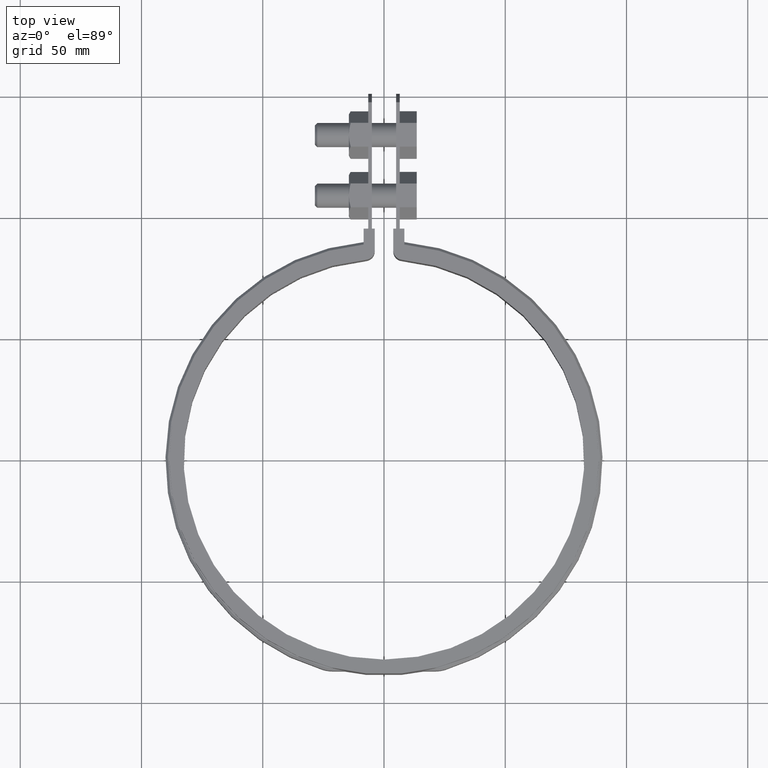
[diagram: clean part render]
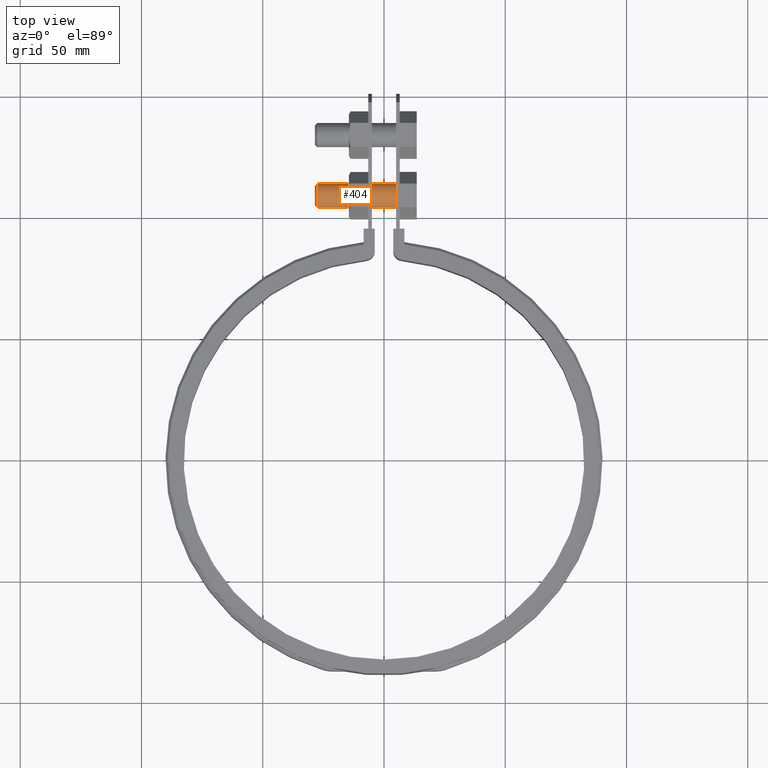
[diagram: same view with one face highlighted and labeled with its STEP entity id]
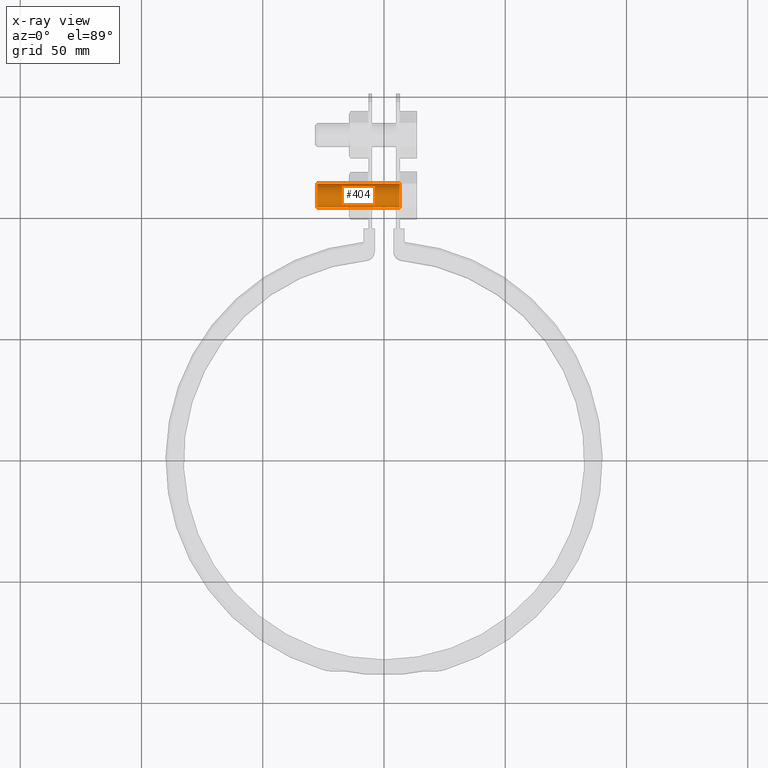
[diagram: x-ray of the same camera — body ghosted, the highlighted face saturated]
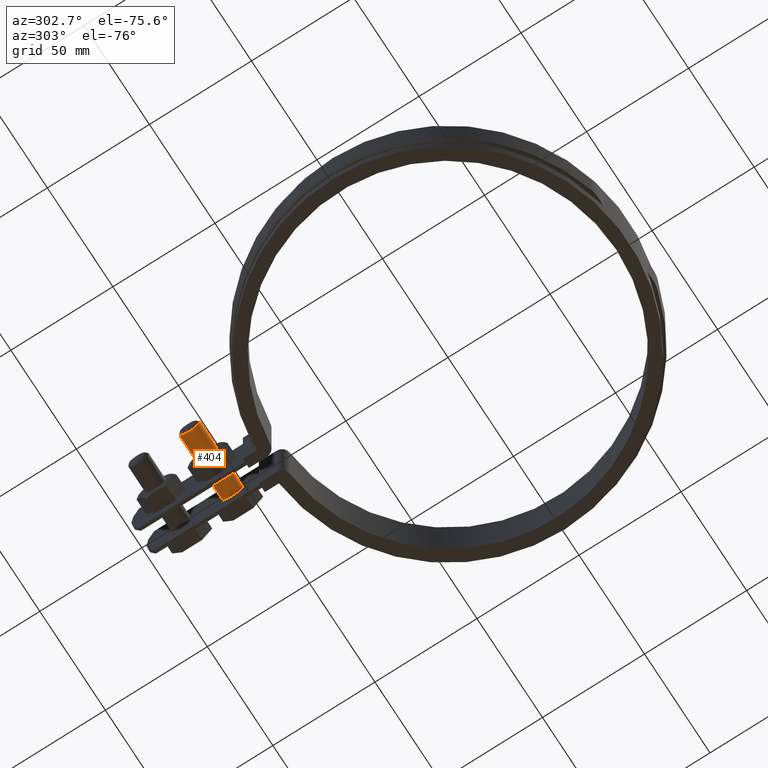
[diagram: same view with one face highlighted and labeled with its STEP entity id]
A machine part, top view. The second image highlights one B-rep face of the part: STEP entity #404.
The next image is the same camera in x-ray: the body ghosted, the highlighted face saturated — about 0% of this face is hidden behind the body in this view.
A second angle (auxiliary view) of the same face is appended — the face is thin or edge-on in the first view.
In plain terms, the highlighted cylindrical surface (bore or boss wall) has radius 5 mm, axis along (1, -0, -0).
Its self-contained STEP definition (entity closure, byte-faithful):
#404 = ADVANCED_FACE( '', ( #662, #663 ), #664, .T. );
#662 = FACE_OUTER_BOUND( '', #1740, .T. );
#663 = FACE_OUTER_BOUND( '', #1741, .T. );
#664 = CYLINDRICAL_SURFACE( '', #1742, 4.99999999999992 );
#1740 = EDGE_LOOP( '', ( #4169 ) );
#1741 = EDGE_LOOP( '', ( #4170 ) );
#1742 = AXIS2_PLACEMENT_3D( '', #4171, #4172, #4173 );
#4169 = ORIENTED_EDGE( '', *, *, #4882, .F. );
#4170 = ORIENTED_EDGE( '', *, *, #4895, .T. );
#4171 = CARTESIAN_POINT( '', ( -28.4999999999988, 109.002986998692, -16.0000000000000 ) );
#4172 = DIRECTION( '', ( 1.00000000000000, -6.22721247786546E-017, -3.08148791101963E-033 ) );
#4173 = DIRECTION( '', ( -3.08148791101963E-033, 0.000000000000000, -1.00000000000000 ) );
#4882 = EDGE_CURVE( '', #5478, #5478, #5479, .T. );
#4895 = EDGE_CURVE( '', #5499, #5499, #5500, .T. );
#5478 = VERTEX_POINT( '', #8286 );
#5479 = CIRCLE( '', #8287, 4.99999999999992 );
#5499 = VERTEX_POINT( '', #8318 );
#5500 = CIRCLE( '', #8319, 4.99999999999992 );
#8286 = CARTESIAN_POINT( '', ( 6.50000000000001, 109.002986998692, -20.9999999999999 ) );
#8287 = AXIS2_PLACEMENT_3D( '', #9038, #9039, #9040 );
#8318 = CARTESIAN_POINT( '', ( -27.4999999999989, 109.002986998692, -20.9999999999999 ) );
#8319 = AXIS2_PLACEMENT_3D( '', #9055, #9056, #9057 );
#9038 = CARTESIAN_POINT( '', ( 6.50000000000001, 109.002986998692, -16.0000000000000 ) );
#9039 = DIRECTION( '', ( 1.00000000000000, -6.22721247786546E-017, -3.08148791101963E-033 ) );
#9040 = DIRECTION( '', ( -3.08148791101963E-033, 0.000000000000000, -1.00000000000000 ) );
#9055 = CARTESIAN_POINT( '', ( -27.4999999999989, 109.002986998692, -16.0000000000000 ) );
#9056 = DIRECTION( '', ( 1.00000000000000, -6.22721247786546E-017, -3.08148791101963E-033 ) );
#9057 = DIRECTION( '', ( -3.08148791101963E-033, 0.000000000000000, -1.00000000000000 ) );